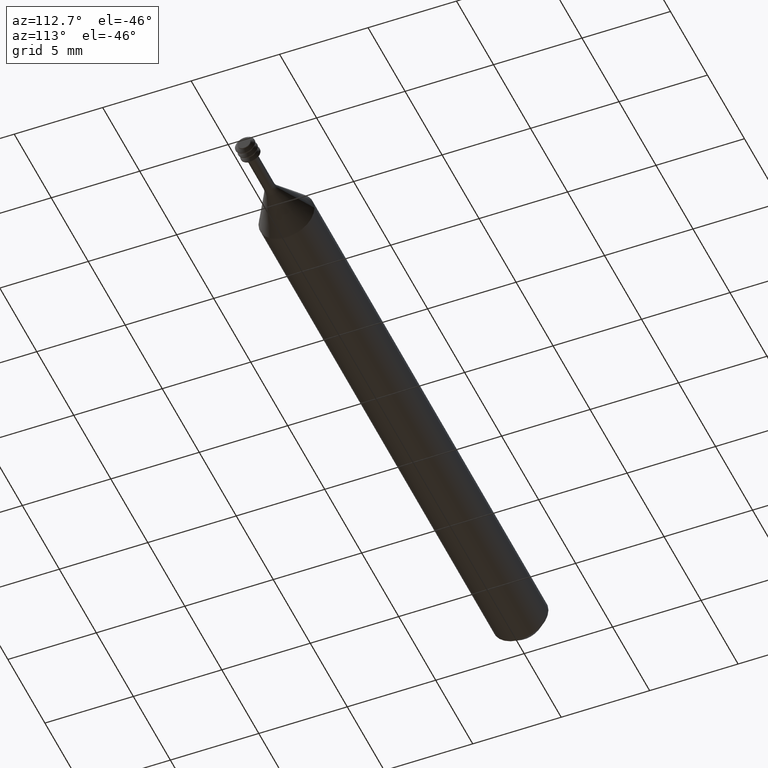
[diagram: clean part render]
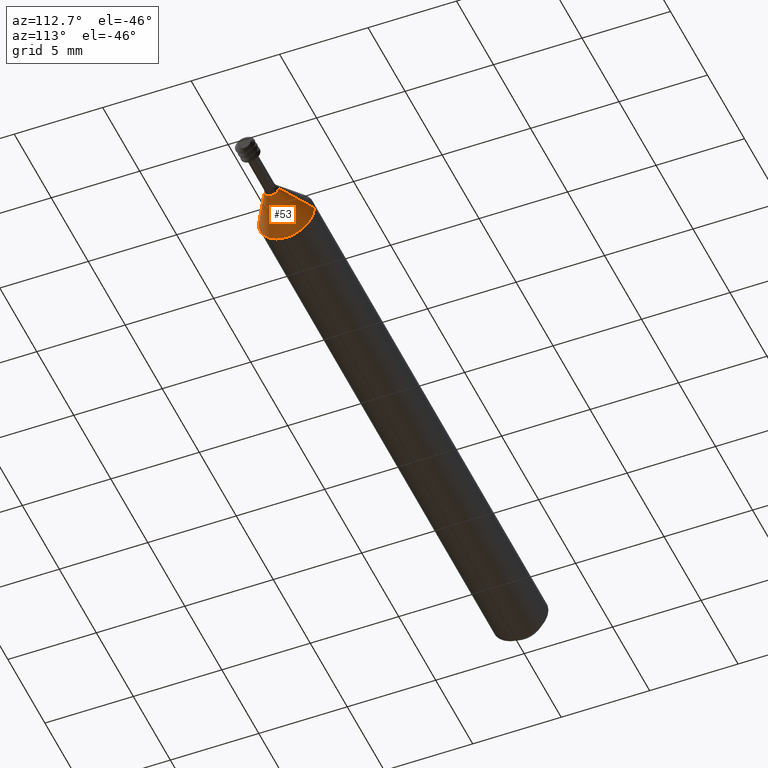
[diagram: same view with one face highlighted and labeled with its STEP entity id]
A machine part, auxiliary view. The second image highlights one B-rep face of the part: STEP entity #53.
In plain terms, the highlighted conical surface has half-angle 30 deg.
Its self-contained STEP definition (entity closure, byte-faithful):
#23 = VECTOR ( 'NONE', #843, 39.37007874015748143 ) ;
#53 = ADVANCED_FACE ( 'NONE', ( #250 ), #534, .T. ) ;
#54 = CARTESIAN_POINT ( 'NONE',  ( 1.264657267242691896, -0.06235000000000025938, 0.0000000000000000000 ) ) ;
#111 = DIRECTION ( 'NONE',  ( -1.000000000000000000, -5.007945890630771977E-17, -0.0000000000000000000 ) ) ;
#116 = CARTESIAN_POINT ( 'NONE',  ( 1.345198729810777927, 0.01584936490538900455, 4.788330096337040514E-18 ) ) ;
#168 = VECTOR ( 'NONE', #838, 39.37007874015748143 ) ;
#172 = CARTESIAN_POINT ( 'NONE',  ( 1.345198729810777927, -0.01584936490538926129, 0.0000000000000000000 ) ) ;
#214 = DIRECTION ( 'NONE',  ( 0.0000000000000000000, -1.000000000000000000, 0.0000000000000000000 ) ) ;
#250 = FACE_OUTER_BOUND ( 'NONE', #1022, .T. ) ;
#253 = EDGE_CURVE ( 'NONE', #255, #351, #1070, .T. ) ;
#255 = VERTEX_POINT ( 'NONE', #116 ) ;
#268 = EDGE_CURVE ( 'NONE', #699, #1065, #269, .T. ) ;
#269 = LINE ( 'NONE', #924, #23 ) ;
#351 = VERTEX_POINT ( 'NONE', #730 ) ;
#362 = ORIENTED_EDGE ( 'NONE', *, *, #253, .F. ) ;
#365 = DIRECTION ( 'NONE',  ( 0.0000000000000000000, -1.000000000000000000, 0.0000000000000000000 ) ) ;
#372 = EDGE_CURVE ( 'NONE', #351, #1065, #722, .T. ) ;
#398 = ORIENTED_EDGE ( 'NONE', *, *, #372, .F. ) ;
#534 = CONICAL_SURFACE ( 'NONE', #1108, 0.01584936490538913639, 0.5235987755983025904 ) ;
#628 = DIRECTION ( 'NONE',  ( -1.000000000000000000, -5.007945890630771977E-17, -0.0000000000000000000 ) ) ;
#653 = CARTESIAN_POINT ( 'NONE',  ( 1.345198729810777927, -1.277130708185053100E-16, 0.0000000000000000000 ) ) ;
#663 = ORIENTED_EDGE ( 'NONE', *, *, #855, .T. ) ;
#699 = VERTEX_POINT ( 'NONE', #172 ) ;
#722 = CIRCLE ( 'NONE', #1082, 0.06235000000000012754 ) ;
#730 = CARTESIAN_POINT ( 'NONE',  ( 1.264657267242691896, 0.06235000000000000264, 7.635672792683768242E-18 ) ) ;
#744 = DIRECTION ( 'NONE',  ( 0.0000000000000000000, -1.000000000000000000, 0.0000000000000000000 ) ) ;
#813 = DIRECTION ( 'NONE',  ( -1.000000000000000000, -5.007945890630771977E-17, -0.0000000000000000000 ) ) ;
#838 = DIRECTION ( 'NONE',  ( -0.8660254037844368202, 0.5000000000000032196, 6.123233995736805479E-17 ) ) ;
#843 = DIRECTION ( 'NONE',  ( -0.8660254037844368202, -0.5000000000000032196, 0.0000000000000000000 ) ) ;
#855 = EDGE_CURVE ( 'NONE', #255, #699, #993, .T. ) ;
#896 = CARTESIAN_POINT ( 'NONE',  ( 1.264657267242691896, -1.317465436834376939E-16, 0.0000000000000000000 ) ) ;
#901 = AXIS2_PLACEMENT_3D ( 'NONE', #653, #111, #744 ) ;
#924 = CARTESIAN_POINT ( 'NONE',  ( 1.345198729810777927, -0.01584936490538926129, 0.0000000000000000000 ) ) ;
#993 = CIRCLE ( 'NONE', #901, 0.01584936490538913292 ) ;
#994 = CARTESIAN_POINT ( 'NONE',  ( 1.345198729810777927, -1.277130708185053100E-16, 0.0000000000000000000 ) ) ;
#1022 = EDGE_LOOP ( 'NONE', ( #362, #663, #1053, #398 ) ) ;
#1053 = ORIENTED_EDGE ( 'NONE', *, *, #268, .T. ) ;
#1065 = VERTEX_POINT ( 'NONE', #54 ) ;
#1070 = LINE ( 'NONE', #1100, #168 ) ;
#1082 = AXIS2_PLACEMENT_3D ( 'NONE', #896, #813, #365 ) ;
#1100 = CARTESIAN_POINT ( 'NONE',  ( 1.345198729810777927, 0.01584936490538900802, 1.940987399990319720E-18 ) ) ;
#1108 = AXIS2_PLACEMENT_3D ( 'NONE', #994, #628, #214 ) ;